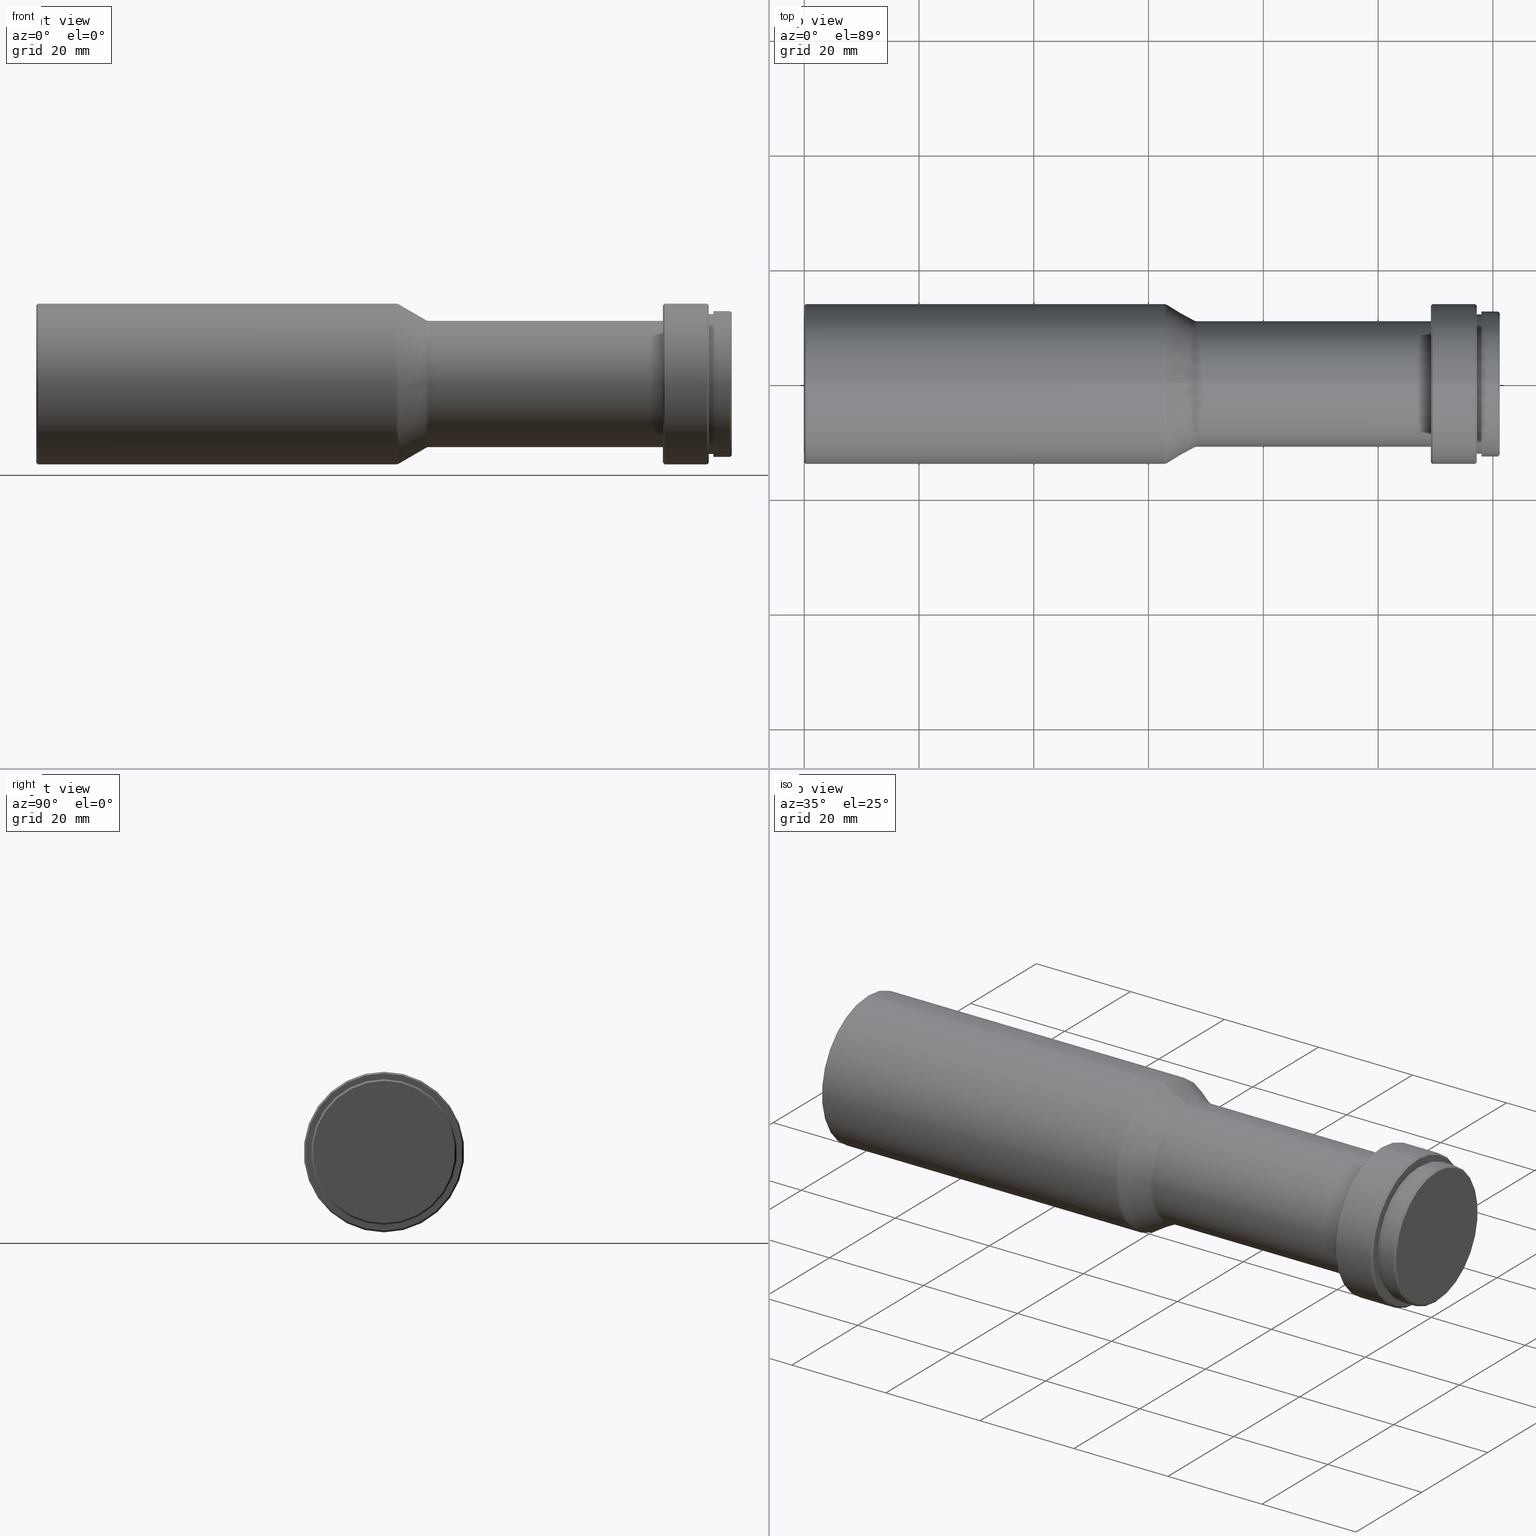
[diagram: canonical four-view strip — front | top / right | iso, engineering-drawing reading convention]
A machine part, canonical four-view strip (front | top / right | iso — engineering-drawing reading convention). The complete STEP part file that produces these views, byte-faithful:
ISO-10303-21;
HEADER;
FILE_DESCRIPTION (( 'STEP AP203' ),
    '1' );
FILE_NAME ('WWH20-63ATV3.STEP',
    '2021-09-09T07:54:44',
    ( '' ),
    ( '' ),
    'SwSTEP 2.0',
    'SolidWorks 2017',
    '' );
FILE_SCHEMA (( 'CONFIG_CONTROL_DESIGN' ));
ENDSEC;

DATA;
#1 = FACE_OUTER_BOUND ( 'NONE', #795, .T. ) ;
#2 = ORIENTED_EDGE ( 'NONE', *, *, #469, .F. ) ;
#3 = AXIS2_PLACEMENT_3D ( 'NONE', #92, #546, #209 ) ;
#4 = ORIENTED_EDGE ( 'NONE', *, *, #479, .T. ) ;
#5 = DIRECTION ( 'NONE',  ( -1.000000000000000000, -0.0000000000000000000, -0.0000000000000000000 ) ) ;
#6 = ORIENTED_EDGE ( 'NONE', *, *, #154, .T. ) ;
#7 = APPROVAL_STATUS ( 'not_yet_approved' ) ;
#8 = CARTESIAN_POINT ( 'NONE',  ( 67.89744790704824600, 0.0000000000000000000, 11.13545307017500200 ) ) ;
#9 = VERTEX_POINT ( 'NONE', #555 ) ;
#10 = ORIENTED_EDGE ( 'NONE', *, *, #612, .T. ) ;
#11 = PERSON_AND_ORGANIZATION_ROLE ( 'creator' ) ;
#12 = DIRECTION ( 'NONE',  ( -0.7071067811865414700, 0.0000000000000000000, 0.7071067811865536800 ) ) ;
#13 = LINE ( 'NONE', #692, #547 ) ;
#14 = DIRECTION ( 'NONE',  ( 0.0000000000000000000, 0.0000000000000000000, 1.000000000000000000 ) ) ;
#15 = COORDINATED_UNIVERSAL_TIME_OFFSET ( 8, 0, .AHEAD. ) ;
#16 = EDGE_CURVE ( 'NONE', #378, #778, #398, .T. ) ;
#17 = PERSON_AND_ORGANIZATION_ROLE ( 'design_owner' ) ;
#18 = DIRECTION ( 'NONE',  ( -1.000000000000000000, -0.0000000000000000000, -0.0000000000000000000 ) ) ;
#19 = AXIS2_PLACEMENT_3D ( 'NONE', #530, #456, #522 ) ;
#20 = DIRECTION ( 'NONE',  ( -1.000000000000000000, -0.0000000000000000000, -0.0000000000000000000 ) ) ;
#21 = DIRECTION ( 'NONE',  ( 0.0000000000000000000, -1.224646799147352200E-016, 1.000000000000000000 ) ) ;
#22 = LINE ( 'NONE', #149, #664 ) ;
#23 = TOROIDAL_SURFACE ( 'NONE', #171, 13.00000000000000200, 0.9999999999999931200 ) ;
#24 = ORIENTED_EDGE ( 'NONE', *, *, #499, .T. ) ;
#25 = DIRECTION ( 'NONE',  ( 0.0000000000000000000, 0.0000000000000000000, 1.000000000000000000 ) ) ;
#26 = AXIS2_PLACEMENT_3D ( 'NONE', #784, #539, #14 ) ;
#27 = EDGE_CURVE ( 'NONE', #138, #763, #448, .T. ) ;
#28 = MANIFOLD_SOLID_BREP ( '��ת1', #595 ) ;
#29 = CARTESIAN_POINT ( 'NONE',  ( 117.2000000000000000, 1.677766114831874000E-015, -13.70000000000000100 ) ) ;
#30 = CIRCLE ( 'NONE', #765, 13.70000000000000100 ) ;
#31 = ORIENTED_EDGE ( 'NONE', *, *, #27, .T. ) ;
#32 = CARTESIAN_POINT ( 'NONE',  ( 63.20255209295175500, 0.0000000000000000000, 13.86454692982498400 ) ) ;
#33 = AXIS2_PLACEMENT_3D ( 'NONE', #812, #177, #110 ) ;
#34 = ORGANIZATION ( 'δָ��', 'δָ��', '' ) ;
#35 = CARTESIAN_POINT ( 'NONE',  ( 109.1999999999999900, 1.347111479062088400E-015, -11.00000000000000000 ) ) ;
#36 = CIRCLE ( 'NONE', #64, 13.86454692982498400 ) ;
#37 = ADVANCED_FACE ( 'NONE', ( #552, #423 ), #494, .F. ) ;
#38 = ADVANCED_FACE ( 'NONE', ( #375 ), #268, .T. ) ;
#39 = CIRCLE ( 'NONE', #723, 12.40000000000000400 ) ;
#40 = DIRECTION ( 'NONE',  ( -1.000000000000000000, -0.0000000000000000000, -0.0000000000000000000 ) ) ;
#41 = FACE_OUTER_BOUND ( 'NONE', #254, .T. ) ;
#42 = ORIENTED_EDGE ( 'NONE', *, *, #16, .F. ) ;
#43 = ORIENTED_EDGE ( 'NONE', *, *, #725, .F. ) ;
#44 = ORIENTED_EDGE ( 'NONE', *, *, #412, .F. ) ;
#45 = DIRECTION ( 'NONE',  ( -1.000000000000000000, -0.0000000000000000000, -0.0000000000000000000 ) ) ;
#46 = EDGE_CURVE ( 'NONE', #626, #142, #577, .T. ) ;
#47 = CIRCLE ( 'NONE', #319, 14.00000000000000000 ) ;
#48 = AXIS2_PLACEMENT_3D ( 'NONE', #235, #811, #294 ) ;
#49 = FACE_OUTER_BOUND ( 'NONE', #289, .T. ) ;
#50 = CARTESIAN_POINT ( 'NONE',  ( 0.0000000000000000000, 1.714505518806294600E-015, -14.00000000000000000 ) ) ;
#51 = CARTESIAN_POINT ( 'NONE',  ( 121.2000000000000000, 0.0000000000000000000, 0.0000000000000000000 ) ) ;
#52 = ADVANCED_FACE ( 'NONE', ( #182 ), #391, .T. ) ;
#53 = CARTESIAN_POINT ( 'NONE',  ( 120.9000000000000100, 0.0000000000000000000, 0.0000000000000000000 ) ) ;
#54 = CARTESIAN_POINT ( 'NONE',  ( 0.0000000000000000000, 1.696135816819084400E-015, 13.70000000000000300 ) ) ;
#55 = CARTESIAN_POINT ( 'NONE',  ( 0.2999999999999999900, 1.714505518806294800E-015, 14.00000000000000200 ) ) ;
#56 = CARTESIAN_POINT ( 'NONE',  ( 62.70000000000000300, 0.0000000000000000000, 0.0000000000000000000 ) ) ;
#57 = VECTOR ( 'NONE', #647, 1000.000000000000000 ) ;
#58 = DIRECTION ( 'NONE',  ( 0.0000000000000000000, 0.0000000000000000000, -1.000000000000000000 ) ) ;
#59 = EDGE_LOOP ( 'NONE', ( #712, #24, #242, #104 ) ) ;
#60 = ORIENTED_EDGE ( 'NONE', *, *, #224, .F. ) ;
#61 = ORIENTED_EDGE ( 'NONE', *, *, #73, .T. ) ;
#62 = CARTESIAN_POINT ( 'NONE',  ( 116.9000000000000100, 0.0000000000000000000, 0.0000000000000000000 ) ) ;
#63 = LINE ( 'NONE', #241, #205 ) ;
#64 = AXIS2_PLACEMENT_3D ( 'NONE', #309, #248, #439 ) ;
#65 = VERTEX_POINT ( 'NONE', #361 ) ;
#66 = ORIENTED_EDGE ( 'NONE', *, *, #479, .F. ) ;
#67 = PERSON_AND_ORGANIZATION ( #383, #34 ) ;
#68 = CYLINDRICAL_SURFACE ( 'NONE', #194, 12.20000000000000300 ) ;
#69 = CARTESIAN_POINT ( 'NONE',  ( 62.70000000000000300, 1.714505518806294600E-015, -14.00000000000000000 ) ) ;
#70 = LINE ( 'NONE', #258, #543 ) ;
#71 = AXIS2_PLACEMENT_3D ( 'NONE', #709, #20, #476 ) ;
#72 = APPROVAL_ROLE ( '' ) ;
#73 = EDGE_CURVE ( 'NONE', #737, #286, #13, .T. ) ;
#74 = APPROVAL_STATUS ( 'not_yet_approved' ) ;
#75 = CONICAL_SURFACE ( 'NONE', #773, 11.13545307017500200, 0.5265481941832603800 ) ;
#76 = APPROVAL ( #7, 'δָ��' ) ;
#77 = CALENDAR_DATE ( 2021, 9, 9 ) ;
#78 = DIRECTION ( 'NONE',  ( -1.000000000000000000, -0.0000000000000000000, -0.0000000000000000000 ) ) ;
#79 = ORIENTED_EDGE ( 'NONE', *, *, #484, .F. ) ;
#80 = ORIENTED_EDGE ( 'NONE', *, *, #335, .T. ) ;
#81 = VERTEX_POINT ( 'NONE', #129 ) ;
#82 = DIRECTION ( 'NONE',  ( 0.0000000000000000000, 0.0000000000000000000, 1.000000000000000000 ) ) ;
#83 = DIRECTION ( 'NONE',  ( -1.000000000000000000, -0.0000000000000000000, -0.0000000000000000000 ) ) ;
#84 = CIRCLE ( 'NONE', #542, 0.9999999999999940000 ) ;
#85 = ORIENTED_EDGE ( 'NONE', *, *, #27, .F. ) ;
#86 = VERTEX_POINT ( 'NONE', #570 ) ;
#87 = DIRECTION ( 'NONE',  ( 0.0000000000000000000, -1.224646799147352000E-016, 1.000000000000000000 ) ) ;
#88 = VECTOR ( 'NONE', #83, 1000.000000000000000 ) ;
#89 = CIRCLE ( 'NONE', #287, 14.00000000000000000 ) ;
#90 = CARTESIAN_POINT ( 'NONE',  ( 0.0000000000000000000, 0.0000000000000000000, 14.00000000000000200 ) ) ;
#91 = CARTESIAN_POINT ( 'NONE',  ( 109.4999999999999900, 0.0000000000000000000, 0.0000000000000000000 ) ) ;
#92 = CARTESIAN_POINT ( 'NONE',  ( 109.1999999999999900, 11.00000000000000000, 0.0000000000000000000 ) ) ;
#93 = CIRCLE ( 'NONE', #360, 14.00000000000000200 ) ;
#94 = DIRECTION ( 'NONE',  ( -1.000000000000000000, -0.0000000000000000000, -0.0000000000000000000 ) ) ;
#95 = DATE_AND_TIME ( #720, #255 ) ;
#96 = ORIENTED_EDGE ( 'NONE', *, *, #799, .T. ) ;
#97 = CARTESIAN_POINT ( 'NONE',  ( 109.1999999999999900, 0.0000000000000000000, 0.0000000000000000000 ) ) ;
#98 = VERTEX_POINT ( 'NONE', #507 ) ;
#99 = DIRECTION ( 'NONE',  ( -0.0000000000000000000, 0.0000000000000000000, 1.000000000000000000 ) ) ;
#100 = ADVANCED_FACE ( 'NONE', ( #517 ), #201, .T. ) ;
#101 = ORIENTED_EDGE ( 'NONE', *, *, #525, .F. ) ;
#102 = FACE_OUTER_BOUND ( 'NONE', #306, .T. ) ;
#103 = ORIENTED_EDGE ( 'NONE', *, *, #297, .F. ) ;
#104 = ORIENTED_EDGE ( 'NONE', *, *, #257, .F. ) ;
#105 = CYLINDRICAL_SURFACE ( 'NONE', #682, 12.70000000000000300 ) ;
#106 = AXIS2_PLACEMENT_3D ( 'NONE', #578, #251, #119 ) ;
#107 = ADVANCED_FACE ( 'NONE', ( #218 ), #571, .T. ) ;
#108 = DIRECTION ( 'NONE',  ( -0.8645469298249874900, 6.154488120381683500E-017, -0.5025520929517537400 ) ) ;
#109 = AXIS2_PLACEMENT_3D ( 'NONE', #327, #332, #87 ) ;
#110 = DIRECTION ( 'NONE',  ( 0.0000000000000000000, 0.0000000000000000000, -1.000000000000000000 ) ) ;
#111 = AXIS2_PLACEMENT_3D ( 'NONE', #184, #433, #231 ) ;
#112 = EDGE_CURVE ( 'NONE', #81, #778, #697, .T. ) ;
#113 = LINE ( 'NONE', #430, #803 ) ;
#114 = ADVANCED_FACE ( 'NONE', ( #673 ), #708, .T. ) ;
#115 = DIRECTION ( 'NONE',  ( 0.0000000000000000000, 0.0000000000000000000, 1.000000000000000000 ) ) ;
#116 = CARTESIAN_POINT ( 'NONE',  ( 68.40000000000002000, 0.0000000000000000000, 0.0000000000000000000 ) ) ;
#117 = AXIS2_PLACEMENT_3D ( 'NONE', #232, #358, #629 ) ;
#118 = PLANE ( 'NONE',  #33 ) ;
#119 = DIRECTION ( 'NONE',  ( 0.0000000000000000000, 0.0000000000000000000, 1.000000000000000000 ) ) ;
#120 = ORIENTED_EDGE ( 'NONE', *, *, #634, .T. ) ;
#121 = DIRECTION ( 'NONE',  ( 0.0000000000000000000, 0.0000000000000000000, 1.000000000000000000 ) ) ;
#122 = ORIENTED_EDGE ( 'NONE', *, *, #634, .F. ) ;
#123 = ORIENTED_EDGE ( 'NONE', *, *, #437, .T. ) ;
#124 = DIRECTION ( 'NONE',  ( 1.000000000000000000, 0.0000000000000000000, 0.0000000000000000000 ) ) ;
#125 = ORIENTED_EDGE ( 'NONE', *, *, #166, .F. ) ;
#126 = CARTESIAN_POINT ( 'NONE',  ( 68.40000000000002000, 0.0000000000000000000, 0.0000000000000000000 ) ) ;
#127 = CIRCLE ( 'NONE', #567, 11.00000000000000000 ) ;
#128 = ORIENTED_EDGE ( 'NONE', *, *, #612, .F. ) ;
#129 = CARTESIAN_POINT ( 'NONE',  ( 109.1999999999999900, 0.0000000000000000000, -13.70000000000000100 ) ) ;
#130 = COORDINATED_UNIVERSAL_TIME_OFFSET ( 8, 0, .AHEAD. ) ;
#131 = DIRECTION ( 'NONE',  ( 0.0000000000000000000, 0.0000000000000000000, 1.000000000000000000 ) ) ;
#132 = CARTESIAN_POINT ( 'NONE',  ( 109.1999999999999900, 1.696135816819084200E-015, 13.70000000000000100 ) ) ;
#133 = AXIS2_PLACEMENT_3D ( 'NONE', #53, #310, #754 ) ;
#134 = PERSON_AND_ORGANIZATION_ROLE ( 'classification_officer' ) ;
#135 = DIRECTION ( 'NONE',  ( 0.0000000000000000000, 0.0000000000000000000, 1.000000000000000000 ) ) ;
#136 = DIRECTION ( 'NONE',  ( 1.000000000000000000, 0.0000000000000000000, 0.0000000000000000000 ) ) ;
#137 = ORIENTED_EDGE ( 'NONE', *, *, #381, .T. ) ;
#138 = VERTEX_POINT ( 'NONE', #752 ) ;
#139 = DIRECTION ( 'NONE',  ( -1.000000000000000000, -0.0000000000000000000, -0.0000000000000000000 ) ) ;
#140 = ORIENTED_EDGE ( 'NONE', *, *, #566, .F. ) ;
#141 = DIRECTION ( 'NONE',  ( -1.000000000000000000, -0.0000000000000000000, -0.0000000000000000000 ) ) ;
#142 = VERTEX_POINT ( 'NONE', #181 ) ;
#143 = ORIENTED_EDGE ( 'NONE', *, *, #207, .F. ) ;
#144 = DIRECTION ( 'NONE',  ( 1.000000000000000000, 0.0000000000000000000, 0.0000000000000000000 ) ) ;
#145 = CARTESIAN_POINT ( 'NONE',  ( 62.70000000000000300, 0.0000000000000000000, 0.0000000000000000000 ) ) ;
#146 = AXIS2_PLACEMENT_3D ( 'NONE', #771, #139, #317 ) ;
#147 = CARTESIAN_POINT ( 'NONE',  ( 120.9000000000000100, 0.0000000000000000000, 0.0000000000000000000 ) ) ;
#148 = DIRECTION ( 'NONE',  ( -0.7071067811865414700, 0.0000000000000000000, 0.7071067811865536800 ) ) ;
#149 = CARTESIAN_POINT ( 'NONE',  ( 0.0000000000000000000, 0.0000000000000000000, 12.70000000000000300 ) ) ;
#150 = FACE_OUTER_BOUND ( 'NONE', #59, .T. ) ;
#151 = EDGE_LOOP ( 'NONE', ( #264, #637, #531, #428 ) ) ;
#152 = AXIS2_PLACEMENT_3D ( 'NONE', #145, #18, #478 ) ;
#153 = AXIS2_PLACEMENT_3D ( 'NONE', #474, #82, #144 ) ;
#154 = EDGE_CURVE ( 'NONE', #489, #9, #36, .T. ) ;
#155 = CARTESIAN_POINT ( 'NONE',  ( 117.2000000000000000, 0.0000000000000000000, 0.0000000000000000000 ) ) ;
#156 = ORIENTED_EDGE ( 'NONE', *, *, #197, .T. ) ;
#157 = CARTESIAN_POINT ( 'NONE',  ( 0.0000000000000000000, 0.0000000000000000000, 0.0000000000000000000 ) ) ;
#158 = VERTEX_POINT ( 'NONE', #746 ) ;
#159 = AXIS2_PLACEMENT_3D ( 'NONE', #116, #40, #558 ) ;
#160 = ORIENTED_EDGE ( 'NONE', *, *, #166, .T. ) ;
#161 = ORIENTED_EDGE ( 'NONE', *, *, #461, .F. ) ;
#162 = ADVANCED_FACE ( 'NONE', ( #729 ), #622, .F. ) ;
#163 = ADVANCED_FACE ( 'NONE', ( #371 ), #408, .T. ) ;
#164 = CARTESIAN_POINT ( 'NONE',  ( 117.2000000000000000, 13.70000000000000100, 0.0000000000000000000 ) ) ;
#165 = CARTESIAN_POINT ( 'NONE',  ( 116.9000000000000100, 0.0000000000000000000, 14.00000000000000000 ) ) ;
#166 = EDGE_CURVE ( 'NONE', #81, #222, #230, .T. ) ;
#167 = ADVANCED_FACE ( 'NONE', ( #564 ), #724, .T. ) ;
#168 = COORDINATED_UNIVERSAL_TIME_OFFSET ( 8, 0, .AHEAD. ) ;
#169 = LINE ( 'NONE', #699, #523 ) ;
#170 = EDGE_LOOP ( 'NONE', ( #403, #670, #575, #492 ) ) ;
#171 = AXIS2_PLACEMENT_3D ( 'NONE', #56, #364, #434 ) ;
#172 = CARTESIAN_POINT ( 'NONE',  ( 62.70000000000000300, 0.0000000000000000000, 0.0000000000000000000 ) ) ;
#173 = DIRECTION ( 'NONE',  ( -0.7071067811865414700, 8.659560562355008000E-017, -0.7071067811865536800 ) ) ;
#174 = ORIENTED_EDGE ( 'NONE', *, *, #280, .F. ) ;
#175 = CARTESIAN_POINT ( 'NONE',  ( 0.2999999999999999900, 0.0000000000000000000, 0.0000000000000000000 ) ) ;
#176 = ORIENTED_EDGE ( 'NONE', *, *, #759, .F. ) ;
#177 = DIRECTION ( 'NONE',  ( 1.000000000000000000, 0.0000000000000000000, 0.0000000000000000000 ) ) ;
#178 = CARTESIAN_POINT ( 'NONE',  ( 68.40000000000002000, 0.0000000000000000000, 12.00000000000000000 ) ) ;
#179 = ORIENTED_EDGE ( 'NONE', *, *, #46, .T. ) ;
#180 = EDGE_LOOP ( 'NONE', ( #343, #346, #429, #143 ) ) ;
#181 = CARTESIAN_POINT ( 'NONE',  ( 0.2999999999999999900, 1.714505518806294800E-015, 14.00000000000000200 ) ) ;
#182 = FACE_OUTER_BOUND ( 'NONE', #266, .T. ) ;
#183 = PRODUCT_DEFINITION_SHAPE ( 'NONE', 'NONE',  #342 ) ;
#184 = CARTESIAN_POINT ( 'NONE',  ( 117.2000000000000000, 0.0000000000000000000, 0.0000000000000000000 ) ) ;
#185 = APPROVAL_DATE_TIME ( #496, #363 ) ;
#186 = CARTESIAN_POINT ( 'NONE',  ( 0.0000000000000000000, 0.0000000000000000000, 0.0000000000000000000 ) ) ;
#187 = DIRECTION ( 'NONE',  ( 0.0000000000000000000, 0.0000000000000000000, -1.000000000000000000 ) ) ;
#188 = EDGE_CURVE ( 'NONE', #668, #527, #384, .T. ) ;
#189 = VECTOR ( 'NONE', #12, 1000.000000000000000 ) ;
#190 = AXIS2_PLACEMENT_3D ( 'NONE', #590, #200, #261 ) ;
#191 = CIRCLE ( 'NONE', #744, 12.40000000000000400 ) ;
#192 = ORIENTED_EDGE ( 'NONE', *, *, #509, .F. ) ;
#193 = CARTESIAN_POINT ( 'NONE',  ( 0.2999999999999999900, 0.0000000000000000000, 0.0000000000000000000 ) ) ;
#194 = AXIS2_PLACEMENT_3D ( 'NONE', #380, #818, #135 ) ;
#195 = CYLINDRICAL_SURFACE ( 'NONE', #19, 10.99999999999999500 ) ;
#196 = AXIS2_PLACEMENT_3D ( 'NONE', #217, #722, #727 ) ;
#197 = EDGE_CURVE ( 'NONE', #640, #814, #686, .T. ) ;
#198 = DIRECTION ( 'NONE',  ( -1.000000000000000000, -0.0000000000000000000, -0.0000000000000000000 ) ) ;
#199 = CC_DESIGN_PERSON_AND_ORGANIZATION_ASSIGNMENT ( #731, #262, ( #234 ) ) ;
#200 = DIRECTION ( 'NONE',  ( -1.000000000000000000, -0.0000000000000000000, -0.0000000000000000000 ) ) ;
#201 = CYLINDRICAL_SURFACE ( 'NONE', #106, 12.70000000000000300 ) ;
#202 = DIRECTION ( 'NONE',  ( -1.000000000000000000, -0.0000000000000000000, -0.0000000000000000000 ) ) ;
#203 = DIRECTION ( 'NONE',  ( 0.0000000000000000000, 0.0000000000000000000, 1.000000000000000000 ) ) ;
#204 = APPROVAL_PERSON_ORGANIZATION ( #216, #363, #533 ) ;
#205 = VECTOR ( 'NONE', #173, 1000.000000000000000 ) ;
#206 = EDGE_LOOP ( 'NONE', ( #137, #272 ) ) ;
#207 = EDGE_CURVE ( 'NONE', #668, #504, #70, .T. ) ;
#208 = EDGE_LOOP ( 'NONE', ( #128, #125, #656, #303 ) ) ;
#209 = DIRECTION ( 'NONE',  ( 0.0000000000000000000, 0.0000000000000000000, -1.000000000000000000 ) ) ;
#210 = LINE ( 'NONE', #8, #407 ) ;
#211 = FACE_OUTER_BOUND ( 'NONE', #180, .T. ) ;
#212 = CARTESIAN_POINT ( 'NONE',  ( 68.40000000000002000, 0.0000000000000000000, 10.99999999999998900 ) ) ;
#213 = AXIS2_PLACEMENT_3D ( 'NONE', #247, #639, #696 ) ;
#214 = DIRECTION ( 'NONE',  ( 0.0000000000000000000, 0.0000000000000000000, 1.000000000000000000 ) ) ;
#215 = PLANE ( 'NONE',  #3 ) ;
#216 = PERSON_AND_ORGANIZATION ( #383, #34 ) ;
#217 = CARTESIAN_POINT ( 'NONE',  ( 117.2000000000000000, 0.0000000000000000000, 0.0000000000000000000 ) ) ;
#218 = FACE_OUTER_BOUND ( 'NONE', #244, .T. ) ;
#219 = CARTESIAN_POINT ( 'NONE',  ( 67.89744790704824600, 0.0000000000000000000, 0.0000000000000000000 ) ) ;
#220 = ADVANCED_FACE ( 'NONE', ( #211 ), #195, .T. ) ;
#221 = ORIENTED_EDGE ( 'NONE', *, *, #236, .F. ) ;
#222 = VERTEX_POINT ( 'NONE', #132 ) ;
#223 = EDGE_LOOP ( 'NONE', ( #85, #285, #338, #308 ) ) ;
#224 = EDGE_CURVE ( 'NONE', #357, #666, #30, .T. ) ;
#225 = FACE_OUTER_BOUND ( 'NONE', #703, .T. ) ;
#226 = ORIENTED_EDGE ( 'NONE', *, *, #592, .T. ) ;
#227 = EDGE_LOOP ( 'NONE', ( #581, #470, #226, #681 ) ) ;
#228 = LOCAL_TIME ( 15, 54, 44.00000000000000000, #168 ) ;
#229 = FACE_OUTER_BOUND ( 'NONE', #223, .T. ) ;
#230 = CIRCLE ( 'NONE', #604, 13.70000000000000100 ) ;
#231 = DIRECTION ( 'NONE',  ( 0.0000000000000000000, 0.0000000000000000000, 1.000000000000000000 ) ) ;
#232 = CARTESIAN_POINT ( 'NONE',  ( 67.89744790704824600, 0.0000000000000000000, 0.0000000000000000000 ) ) ;
#233 = AXIS2_PLACEMENT_3D ( 'NONE', #534, #78, #267 ) ;
#234 = PRODUCT_DEFINITION_FORMATION_WITH_SPECIFIED_SOURCE ( '�κ�', '', #315, .NOT_KNOWN. ) ;
#235 = CARTESIAN_POINT ( 'NONE',  ( 109.4999999999999900, 0.0000000000000000000, 0.0000000000000000000 ) ) ;
#236 = EDGE_CURVE ( 'NONE', #666, #357, #742, .T. ) ;
#237 = DIRECTION ( 'NONE',  ( -1.000000000000000000, -0.0000000000000000000, -0.0000000000000000000 ) ) ;
#238 = CIRCLE ( 'NONE', #159, 10.99999999999998900 ) ;
#239 = CC_DESIGN_APPROVAL ( #76, ( #234 ) ) ;
#240 = CARTESIAN_POINT ( 'NONE',  ( 109.4999999999999900, 0.0000000000000000000, -14.00000000000000000 ) ) ;
#241 = CARTESIAN_POINT ( 'NONE',  ( 121.2000000000000000, 1.518562030942718400E-015, -12.40000000000000400 ) ) ;
#242 = ORIENTED_EDGE ( 'NONE', *, *, #207, .T. ) ;
#243 = EDGE_CURVE ( 'NONE', #737, #378, #585, .T. ) ;
#244 = EDGE_LOOP ( 'NONE', ( #305, #80, #690, #329 ) ) ;
#245 = DIRECTION ( 'NONE',  ( -1.000000000000000000, -0.0000000000000000000, -0.0000000000000000000 ) ) ;
#246 = VERTEX_POINT ( 'NONE', #69 ) ;
#247 = CARTESIAN_POINT ( 'NONE',  ( 109.1999999999999900, 0.0000000000000000000, 0.0000000000000000000 ) ) ;
#248 = DIRECTION ( 'NONE',  ( -1.000000000000000000, -0.0000000000000000000, -0.0000000000000000000 ) ) ;
#249 = DESIGN_CONTEXT ( 'detailed design', #648, 'design' ) ;
#250 = LINE ( 'NONE', #544, #311 ) ;
#251 = DIRECTION ( 'NONE',  ( -1.000000000000000000, -0.0000000000000000000, -0.0000000000000000000 ) ) ;
#252 = CYLINDRICAL_SURFACE ( 'NONE', #691, 14.00000000000000000 ) ;
#253 = ORIENTED_EDGE ( 'NONE', *, *, #385, .F. ) ;
#254 = EDGE_LOOP ( 'NONE', ( #176, #10, #510, #738 ) ) ;
#255 = LOCAL_TIME ( 15, 54, 44.00000000000000000, #130 ) ;
#256 = CIRCLE ( 'NONE', #26, 14.00000000000000200 ) ;
#257 = EDGE_CURVE ( 'NONE', #813, #504, #359, .T. ) ;
#258 = CARTESIAN_POINT ( 'NONE',  ( 0.0000000000000000000, 0.0000000000000000000, 10.99999999999999500 ) ) ;
#259 = EDGE_CURVE ( 'NONE', #527, #813, #707, .T. ) ;
#260 = AXIS2_PLACEMENT_3D ( 'NONE', #535, #713, #203 ) ;
#261 = DIRECTION ( 'NONE',  ( 0.0000000000000000000, 0.0000000000000000000, 1.000000000000000000 ) ) ;
#262 = PERSON_AND_ORGANIZATION_ROLE ( 'design_supplier' ) ;
#263 = APPROVAL_DATE_TIME ( #373, #76 ) ;
#264 = ORIENTED_EDGE ( 'NONE', *, *, #236, .T. ) ;
#265 = ORIENTED_EDGE ( 'NONE', *, *, #610, .F. ) ;
#266 = EDGE_LOOP ( 'NONE', ( #541, #621, #328, #4 ) ) ;
#267 = DIRECTION ( 'NONE',  ( 0.0000000000000000000, 0.0000000000000000000, 1.000000000000000000 ) ) ;
#268 = TOROIDAL_SURFACE ( 'NONE', #641, 13.00000000000000200, 0.9999999999999931200 ) ;
#269 = CARTESIAN_POINT ( 'NONE',  ( 68.40000000000002000, 1.355405587503313300E-015, -10.99999999999998900 ) ) ;
#270 = DIRECTION ( 'NONE',  ( 0.0000000000000000000, 0.0000000000000000000, 1.000000000000000000 ) ) ;
#271 = CIRCLE ( 'NONE', #711, 13.70000000000000300 ) ;
#272 = ORIENTED_EDGE ( 'NONE', *, *, #484, .T. ) ;
#273 = DIRECTION ( 'NONE',  ( -1.000000000000000000, -0.0000000000000000000, -0.0000000000000000000 ) ) ;
#274 = CIRCLE ( 'NONE', #152, 14.00000000000000000 ) ;
#275 = DIRECTION ( 'NONE',  ( 0.0000000000000000000, 0.0000000000000000000, 1.000000000000000000 ) ) ;
#276 = DIRECTION ( 'NONE',  ( -1.000000000000000000, -0.0000000000000000000, -0.0000000000000000000 ) ) ;
#277 = AXIS2_PLACEMENT_3D ( 'NONE', #193, #136, #589 ) ;
#278 = CIRCLE ( 'NONE', #213, 13.70000000000000100 ) ;
#279 =( GEOMETRIC_REPRESENTATION_CONTEXT ( 3 ) GLOBAL_UNCERTAINTY_ASSIGNED_CONTEXT ( ( #330 ) ) GLOBAL_UNIT_ASSIGNED_CONTEXT ( ( #779, #782, #395 ) ) REPRESENTATION_CONTEXT ( 'NONE', 'WORKASPACE' ) );
#280 = EDGE_CURVE ( 'NONE', #378, #737, #89, .T. ) ;
#281 = DIRECTION ( 'NONE',  ( 0.7071067811865476800, 0.0000000000000000000, -0.7071067811865474600 ) ) ;
#282 = DIRECTION ( 'NONE',  ( -1.000000000000000000, -0.0000000000000000000, -0.0000000000000000000 ) ) ;
#283 = DIRECTION ( 'NONE',  ( -1.000000000000000000, -0.0000000000000000000, -0.0000000000000000000 ) ) ;
#284 = SECURITY_CLASSIFICATION ( '', '', #588 ) ;
#285 = ORIENTED_EDGE ( 'NONE', *, *, #743, .T. ) ;
#286 = VERTEX_POINT ( 'NONE', #320 ) ;
#287 = AXIS2_PLACEMENT_3D ( 'NONE', #62, #5, #324 ) ;
#288 = CARTESIAN_POINT ( 'NONE',  ( 62.70000000000000300, 1.592040838891559300E-015, -13.00000000000000200 ) ) ;
#289 = EDGE_LOOP ( 'NONE', ( #445, #513, #123, #607 ) ) ;
#290 = CIRCLE ( 'NONE', #615, 12.70000000000000300 ) ;
#291 = ADVANCED_FACE ( 'NONE', ( #49 ), #68, .T. ) ;
#292 = EDGE_LOOP ( 'NONE', ( #657, #783 ) ) ;
#293 = LOCAL_TIME ( 15, 54, 44.00000000000000000, #550 ) ;
#294 = DIRECTION ( 'NONE',  ( 0.0000000000000000000, 0.0000000000000000000, -1.000000000000000000 ) ) ;
#295 = ADVANCED_FACE ( 'NONE', ( #608 ), #382, .T. ) ;
#296 = CARTESIAN_POINT ( 'NONE',  ( 109.4999999999999900, 0.0000000000000000000, -14.00000000000000000 ) ) ;
#297 = EDGE_CURVE ( 'NONE', #9, #489, #583, .T. ) ;
#298 = DIRECTION ( 'NONE',  ( 0.0000000000000000000, 0.0000000000000000000, 1.000000000000000000 ) ) ;
#299 = EDGE_CURVE ( 'NONE', #814, #489, #210, .T. ) ;
#300 = AXIS2_PLACEMENT_3D ( 'NONE', #155, #339, #25 ) ;
#301 = DIRECTION ( 'NONE',  ( 0.7071067811865414700, 0.0000000000000000000, -0.7071067811865536800 ) ) ;
#302 = CARTESIAN_POINT ( 'NONE',  ( 118.0000000000000000, 1.555301434917138800E-015, -12.70000000000000300 ) ) ;
#303 = ORIENTED_EDGE ( 'NONE', *, *, #525, .T. ) ;
#304 = CARTESIAN_POINT ( 'NONE',  ( 121.2000000000000000, 12.40000000000000400, 0.0000000000000000000 ) ) ;
#305 = ORIENTED_EDGE ( 'NONE', *, *, #509, .T. ) ;
#306 = EDGE_LOOP ( 'NONE', ( #160, #418 ) ) ;
#307 = EDGE_LOOP ( 'NONE', ( #601, #96 ) ) ;
#308 = ORIENTED_EDGE ( 'NONE', *, *, #545, .F. ) ;
#309 = CARTESIAN_POINT ( 'NONE',  ( 63.20255209295175500, 0.0000000000000000000, 0.0000000000000000000 ) ) ;
#310 = DIRECTION ( 'NONE',  ( -1.000000000000000000, -0.0000000000000000000, -0.0000000000000000000 ) ) ;
#311 = VECTOR ( 'NONE', #281, 1000.000000000000000 ) ;
#312 = DIRECTION ( 'NONE',  ( 0.0000000000000000000, 0.0000000000000000000, 1.000000000000000000 ) ) ;
#313 = DIRECTION ( 'NONE',  ( 0.0000000000000000000, 0.0000000000000000000, 1.000000000000000000 ) ) ;
#314 = LINE ( 'NONE', #90, #819 ) ;
#315 = PRODUCT ( 'WWH20-63ATV3', 'WWH20-63ATV3', '', ( #397 ) ) ;
#316 = DATE_TIME_ROLE ( 'classification_date' ) ;
#317 = DIRECTION ( 'NONE',  ( 0.0000000000000000000, 0.0000000000000000000, 1.000000000000000000 ) ) ;
#318 = ORIENTED_EDGE ( 'NONE', *, *, #454, .F. ) ;
#319 = AXIS2_PLACEMENT_3D ( 'NONE', #91, #790, #214 ) ;
#320 = CARTESIAN_POINT ( 'NONE',  ( 109.4999999999999900, 1.714505518806294600E-015, 14.00000000000000000 ) ) ;
#321 = AXIS2_PLACEMENT_3D ( 'NONE', #446, #757, #449 ) ;
#322 = EDGE_CURVE ( 'NONE', #142, #775, #256, .T. ) ;
#323 = EDGE_LOOP ( 'NONE', ( #42, #618, #61, #101 ) ) ;
#324 = DIRECTION ( 'NONE',  ( 0.0000000000000000000, 0.0000000000000000000, 1.000000000000000000 ) ) ;
#325 = ORIENTED_EDGE ( 'NONE', *, *, #335, .F. ) ;
#326 = CC_DESIGN_PERSON_AND_ORGANIZATION_ASSIGNMENT ( #67, #134, ( #284 ) ) ;
#327 = CARTESIAN_POINT ( 'NONE',  ( 68.40000000000002000, 1.469576158976823900E-015, -12.00000000000000000 ) ) ;
#328 = ORIENTED_EDGE ( 'NONE', *, *, #469, .T. ) ;
#329 = ORIENTED_EDGE ( 'NONE', *, *, #372, .F. ) ;
#330 = UNCERTAINTY_MEASURE_WITH_UNIT (LENGTH_MEASURE( 1.000000000000000100E-005 ), #779, 'distance_accuracy_value', 'NONE');
#331 = PERSON_AND_ORGANIZATION ( #383, #34 ) ;
#332 = DIRECTION ( 'NONE',  ( -0.0000000000000000000, 1.000000000000000000, 1.224646799147353200E-016 ) ) ;
#333 = DIRECTION ( 'NONE',  ( 0.0000000000000000000, 0.0000000000000000000, 1.000000000000000000 ) ) ;
#334 = CYLINDRICAL_SURFACE ( 'NONE', #768, 14.00000000000000200 ) ;
#335 = EDGE_CURVE ( 'NONE', #246, #775, #432, .T. ) ;
#336 = CARTESIAN_POINT ( 'NONE',  ( 0.0000000000000000000, 0.0000000000000000000, 12.20000000000000300 ) ) ;
#337 = CIRCLE ( 'NONE', #133, 12.70000000000000300 ) ;
#338 = ORIENTED_EDGE ( 'NONE', *, *, #435, .T. ) ;
#339 = DIRECTION ( 'NONE',  ( -1.000000000000000000, -0.0000000000000000000, -0.0000000000000000000 ) ) ;
#340 = EDGE_CURVE ( 'NONE', #246, #687, #274, .T. ) ;
#341 = DIRECTION ( 'NONE',  ( -1.000000000000000000, -0.0000000000000000000, -0.0000000000000000000 ) ) ;
#342 = PRODUCT_DEFINITION ( 'δ֪', '', #234, #249 ) ;
#343 = ORIENTED_EDGE ( 'NONE', *, *, #188, .T. ) ;
#344 = CARTESIAN_POINT ( 'NONE',  ( 0.2999999999999999900, 0.0000000000000000000, 0.0000000000000000000 ) ) ;
#345 = DIRECTION ( 'NONE',  ( 0.0000000000000000000, 0.0000000000000000000, 1.000000000000000000 ) ) ;
#346 = ORIENTED_EDGE ( 'NONE', *, *, #259, .T. ) ;
#347 = EDGE_LOOP ( 'NONE', ( #638, #156, #524, #103 ) ) ;
#348 = EDGE_LOOP ( 'NONE', ( #161, #705, #796, #174 ) ) ;
#349 = ADVANCED_FACE ( 'NONE', ( #229 ), #105, .T. ) ;
#350 = CYLINDRICAL_SURFACE ( 'NONE', #458, 12.20000000000000300 ) ;
#351 = LOCAL_TIME ( 15, 54, 44.00000000000000000, #442 ) ;
#352 = ADVANCED_FACE ( 'NONE', ( #766 ), #350, .T. ) ;
#353 = PLANE ( 'NONE',  #405 ) ;
#354 = VECTOR ( 'NONE', #661, 1000.000000000000000 ) ;
#355 = FACE_OUTER_BOUND ( 'NONE', #671, .T. ) ;
#356 = ORIENTED_EDGE ( 'NONE', *, *, #412, .T. ) ;
#357 = VERTEX_POINT ( 'NONE', #537 ) ;
#358 = DIRECTION ( 'NONE',  ( -1.000000000000000000, -0.0000000000000000000, -0.0000000000000000000 ) ) ;
#359 = CIRCLE ( 'NONE', #190, 10.99999999999998900 ) ;
#360 = AXIS2_PLACEMENT_3D ( 'NONE', #344, #788, #413 ) ;
#361 = CARTESIAN_POINT ( 'NONE',  ( 121.2000000000000000, 1.536931732929928600E-015, -12.40000000000000400 ) ) ;
#362 = ADVANCED_FACE ( 'NONE', ( #740 ), #334, .T. ) ;
#363 = APPROVAL ( #74, 'δָ��' ) ;
#364 = DIRECTION ( 'NONE',  ( -1.000000000000000000, -0.0000000000000000000, -0.0000000000000000000 ) ) ;
#365 = EDGE_CURVE ( 'NONE', #65, #596, #39, .T. ) ;
#366 = DIRECTION ( 'NONE',  ( -1.000000000000000000, -0.0000000000000000000, -0.0000000000000000000 ) ) ;
#367 = DIRECTION ( 'NONE',  ( 1.000000000000000000, 0.0000000000000000000, 0.0000000000000000000 ) ) ;
#368 = CARTESIAN_POINT ( 'NONE',  ( 117.2000000000000000, 1.494069094959771300E-015, -12.20000000000000300 ) ) ;
#369 = AXIS2_PLACEMENT_3D ( 'NONE', #748, #366, #807 ) ;
#370 = DIRECTION ( 'NONE',  ( 0.0000000000000000000, 0.0000000000000000000, 1.000000000000000000 ) ) ;
#371 = FACE_OUTER_BOUND ( 'NONE', #151, .T. ) ;
#372 = EDGE_CURVE ( 'NONE', #687, #142, #314, .T. ) ;
#373 = DATE_AND_TIME ( #739, #351 ) ;
#374 = DIRECTION ( 'NONE',  ( -1.000000000000000000, -0.0000000000000000000, -0.0000000000000000000 ) ) ;
#375 = FACE_OUTER_BOUND ( 'NONE', #394, .T. ) ;
#376 = CIRCLE ( 'NONE', #802, 12.70000000000000300 ) ;
#377 = FACE_OUTER_BOUND ( 'NONE', #206, .T. ) ;
#378 = VERTEX_POINT ( 'NONE', #602 ) ;
#379 = ORIENTED_EDGE ( 'NONE', *, *, #197, .F. ) ;
#380 = CARTESIAN_POINT ( 'NONE',  ( 0.0000000000000000000, 0.0000000000000000000, 0.0000000000000000000 ) ) ;
#381 = EDGE_CURVE ( 'NONE', #98, #626, #521, .T. ) ;
#382 = CONICAL_SURFACE ( 'NONE', #277, 14.00000000000000200, 0.7853981633974481700 ) ;
#383 = PERSON ( 'δָ��', 'δָ��', 'δָ��', ('δָ��'), ('δָ��'), ('δָ��') ) ;
#384 = CIRCLE ( 'NONE', #646, 11.00000000000000000 ) ;
#385 = EDGE_CURVE ( 'NONE', #635, #138, #376, .T. ) ;
#386 = CC_DESIGN_PERSON_AND_ORGANIZATION_ASSIGNMENT ( #710, #11, ( #342 ) ) ;
#387 = CARTESIAN_POINT ( 'NONE',  ( 0.0000000000000000000, 1.714505518806294800E-015, -14.00000000000000200 ) ) ;
#388 = APPROVAL_ROLE ( '' ) ;
#389 = DIRECTION ( 'NONE',  ( 0.0000000000000000000, 0.0000000000000000000, 1.000000000000000000 ) ) ;
#390 = PERSON_AND_ORGANIZATION ( #383, #34 ) ;
#391 = CONICAL_SURFACE ( 'NONE', #518, 14.00000000000000200, 0.7853981633974481700 ) ;
#392 = CARTESIAN_POINT ( 'NONE',  ( 117.2000000000000000, 0.0000000000000000000, 13.70000000000000100 ) ) ;
#393 = LOCAL_TIME ( 15, 54, 44.00000000000000000, #15 ) ;
#394 = EDGE_LOOP ( 'NONE', ( #6, #756, #192, #444 ) ) ;
#395 =( NAMED_UNIT ( * ) SI_UNIT ( $, .STERADIAN. ) SOLID_ANGLE_UNIT ( ) );
#396 = ORIENTED_EDGE ( 'NONE', *, *, #651, .T. ) ;
#397 = MECHANICAL_CONTEXT ( 'NONE', #600, 'mechanical' ) ;
#398 = LINE ( 'NONE', #50, #734 ) ;
#399 = DIRECTION ( 'NONE',  ( -1.000000000000000000, -0.0000000000000000000, -0.0000000000000000000 ) ) ;
#400 = CIRCLE ( 'NONE', #438, 1.000000000000011300 ) ;
#401 = CARTESIAN_POINT ( 'NONE',  ( 121.2000000000000000, 0.0000000000000000000, 0.0000000000000000000 ) ) ;
#402 = ORIENTED_EDGE ( 'NONE', *, *, #16, .T. ) ;
#403 = ORIENTED_EDGE ( 'NONE', *, *, #551, .F. ) ;
#404 = CARTESIAN_POINT ( 'NONE',  ( 118.0000000000000000, 0.0000000000000000000, 0.0000000000000000000 ) ) ;
#405 = AXIS2_PLACEMENT_3D ( 'NONE', #304, #741, #498 ) ;
#406 = PERSON_AND_ORGANIZATION ( #383, #34 ) ;
#407 = VECTOR ( 'NONE', #464, 1000.000000000000200 ) ;
#408 = CONICAL_SURFACE ( 'NONE', #424, 13.70000000000000100, 0.7853981633974569400 ) ;
#409 = DIRECTION ( 'NONE',  ( 0.0000000000000000000, 0.0000000000000000000, -1.000000000000000000 ) ) ;
#410 = AXIS2_PLACEMENT_3D ( 'NONE', #593, #774, #389 ) ;
#411 = APPROVAL ( #457, 'δָ��' ) ;
#412 = EDGE_CURVE ( 'NONE', #640, #813, #501, .T. ) ;
#413 = DIRECTION ( 'NONE',  ( 0.0000000000000000000, 0.0000000000000000000, 1.000000000000000000 ) ) ;
#414 = CIRCLE ( 'NONE', #117, 11.13545307017500200 ) ;
#415 = DIRECTION ( 'NONE',  ( 0.0000000000000000000, 0.0000000000000000000, 1.000000000000000000 ) ) ;
#416 = CARTESIAN_POINT ( 'NONE',  ( 118.0000000000000000, 0.0000000000000000000, 0.0000000000000000000 ) ) ;
#417 = CALENDAR_DATE ( 2021, 9, 9 ) ;
#418 = ORIENTED_EDGE ( 'NONE', *, *, #759, .T. ) ;
#419 = ORIENTED_EDGE ( 'NONE', *, *, #340, .T. ) ;
#420 = EDGE_CURVE ( 'NONE', #666, #737, #554, .T. ) ;
#421 = DIRECTION ( 'NONE',  ( -1.000000000000000000, -0.0000000000000000000, -0.0000000000000000000 ) ) ;
#422 = EDGE_LOOP ( 'NONE', ( #325, #419, #762, #66 ) ) ;
#423 = FACE_BOUND ( 'NONE', #307, .T. ) ;
#424 = AXIS2_PLACEMENT_3D ( 'NONE', #576, #237, #370 ) ;
#425 = FACE_OUTER_BOUND ( 'NONE', #793, .T. ) ;
#426 = ADVANCED_FACE ( 'NONE', ( #701 ), #679, .T. ) ;
#427 = ORIENTED_EDGE ( 'NONE', *, *, #73, .F. ) ;
#428 = ORIENTED_EDGE ( 'NONE', *, *, #420, .F. ) ;
#429 = ORIENTED_EDGE ( 'NONE', *, *, #651, .F. ) ;
#430 = CARTESIAN_POINT ( 'NONE',  ( 67.89744790704824600, 1.363699695944538400E-015, -11.13545307017500200 ) ) ;
#431 = CALENDAR_DATE ( 2021, 9, 9 ) ;
#432 = LINE ( 'NONE', #387, #88 ) ;
#433 = DIRECTION ( 'NONE',  ( -1.000000000000000000, -0.0000000000000000000, -0.0000000000000000000 ) ) ;
#434 = DIRECTION ( 'NONE',  ( 0.0000000000000000000, 0.0000000000000000000, 1.000000000000000000 ) ) ;
#435 = EDGE_CURVE ( 'NONE', #635, #158, #22, .T. ) ;
#436 = PLANE ( 'NONE',  #467 ) ;
#437 = EDGE_CURVE ( 'NONE', #617, #86, #538, .T. ) ;
#438 = AXIS2_PLACEMENT_3D ( 'NONE', #178, #569, #58 ) ;
#439 = DIRECTION ( 'NONE',  ( 0.0000000000000000000, 0.0000000000000000000, 1.000000000000000000 ) ) ;
#440 = FACE_OUTER_BOUND ( 'NONE', #170, .T. ) ;
#441 = CARTESIAN_POINT ( 'NONE',  ( 62.70000000000000300, 0.0000000000000000000, 14.00000000000000000 ) ) ;
#442 = COORDINATED_UNIVERSAL_TIME_OFFSET ( 8, 0, .AHEAD. ) ;
#443 = ORIENTED_EDGE ( 'NONE', *, *, #685, .T. ) ;
#444 = ORIENTED_EDGE ( 'NONE', *, *, #599, .F. ) ;
#445 = ORIENTED_EDGE ( 'NONE', *, *, #770, .F. ) ;
#446 = CARTESIAN_POINT ( 'NONE',  ( 68.40000000000002000, 0.0000000000000000000, 0.0000000000000000000 ) ) ;
#447 = CARTESIAN_POINT ( 'NONE',  ( 109.4999999999999900, 0.0000000000000000000, 0.0000000000000000000 ) ) ;
#448 = LINE ( 'NONE', #623, #715 ) ;
#449 = DIRECTION ( 'NONE',  ( 0.0000000000000000000, 0.0000000000000000000, 1.000000000000000000 ) ) ;
#450 = DIRECTION ( 'NONE',  ( 0.0000000000000000000, 0.0000000000000000000, 1.000000000000000000 ) ) ;
#451 = CIRCLE ( 'NONE', #654, 12.20000000000000300 ) ;
#452 = ORIENTED_EDGE ( 'NONE', *, *, #299, .F. ) ;
#453 = CARTESIAN_POINT ( 'NONE',  ( 117.2000000000000000, 0.0000000000000000000, 0.0000000000000000000 ) ) ;
#454 = EDGE_CURVE ( 'NONE', #286, #778, #47, .T. ) ;
#455 = AXIS2_PLACEMENT_3D ( 'NONE', #717, #726, #409 ) ;
#456 = DIRECTION ( 'NONE',  ( -1.000000000000000000, -0.0000000000000000000, -0.0000000000000000000 ) ) ;
#457 = APPROVAL_STATUS ( 'not_yet_approved' ) ;
#458 = AXIS2_PLACEMENT_3D ( 'NONE', #605, #273, #275 ) ;
#459 = DIRECTION ( 'NONE',  ( -1.000000000000000000, -0.0000000000000000000, -0.0000000000000000000 ) ) ;
#460 = CC_DESIGN_APPROVAL ( #411, ( #284 ) ) ;
#461 = EDGE_CURVE ( 'NONE', #357, #378, #721, .T. ) ;
#462 = APPLICATION_PROTOCOL_DEFINITION ( 'international standard', 'config_control_design', 1994, #648 ) ;
#463 = ORIENTED_EDGE ( 'NONE', *, *, #257, .T. ) ;
#464 = DIRECTION ( 'NONE',  ( -0.8645469298249874900, 0.0000000000000000000, 0.5025520929517537400 ) ) ;
#465 = EDGE_LOOP ( 'NONE', ( #43, #140 ) ) ;
#466 = VECTOR ( 'NONE', #815, 1000.000000000000000 ) ;
#467 = AXIS2_PLACEMENT_3D ( 'NONE', #689, #502, #693 ) ;
#468 = EDGE_LOOP ( 'NONE', ( #79, #179, #776, #2 ) ) ;
#469 = EDGE_CURVE ( 'NONE', #98, #775, #250, .T. ) ;
#470 = ORIENTED_EDGE ( 'NONE', *, *, #365, .T. ) ;
#471 = CARTESIAN_POINT ( 'NONE',  ( 67.89744790704824600, 0.0000000000000000000, 11.13545307017500200 ) ) ;
#472 = DIRECTION ( 'NONE',  ( 0.0000000000000000000, 0.0000000000000000000, 1.000000000000000000 ) ) ;
#473 = CONICAL_SURFACE ( 'NONE', #196, 13.70000000000000100, 0.7853981633974569400 ) ;
#474 = CARTESIAN_POINT ( 'NONE',  ( 0.0000000000000000000, 0.0000000000000000000, 0.0000000000000000000 ) ) ;
#475 = AXIS2_PLACEMENT_3D ( 'NONE', #186, #645, #698 ) ;
#476 = DIRECTION ( 'NONE',  ( 0.0000000000000000000, 0.0000000000000000000, 1.000000000000000000 ) ) ;
#477 = APPROVAL_PERSON_ORGANIZATION ( #331, #411, #388 ) ;
#478 = DIRECTION ( 'NONE',  ( 0.0000000000000000000, 0.0000000000000000000, 1.000000000000000000 ) ) ;
#479 = EDGE_CURVE ( 'NONE', #775, #142, #93, .T. ) ;
#480 = DIRECTION ( 'NONE',  ( 0.0000000000000000000, 0.0000000000000000000, 1.000000000000000000 ) ) ;
#481 = CARTESIAN_POINT ( 'NONE',  ( 121.2000000000000000, 0.0000000000000000000, 12.40000000000000400 ) ) ;
#482 = LINE ( 'NONE', #485, #579 ) ;
#483 = DIRECTION ( 'NONE',  ( -0.7071067811865414700, 8.659560562355008000E-017, -0.7071067811865536800 ) ) ;
#484 = EDGE_CURVE ( 'NONE', #626, #98, #271, .T. ) ;
#485 = CARTESIAN_POINT ( 'NONE',  ( 121.2000000000000000, 0.0000000000000000000, 12.40000000000000400 ) ) ;
#486 = CC_DESIGN_DATE_AND_TIME_ASSIGNMENT ( #582, #586, ( #342 ) ) ;
#487 = ORIENTED_EDGE ( 'NONE', *, *, #243, .T. ) ;
#488 = DIRECTION ( 'NONE',  ( 0.0000000000000000000, 0.0000000000000000000, 1.000000000000000000 ) ) ;
#489 = VERTEX_POINT ( 'NONE', #32 ) ;
#490 = DIRECTION ( 'NONE',  ( -1.000000000000000000, -0.0000000000000000000, -0.0000000000000000000 ) ) ;
#491 = ORIENTED_EDGE ( 'NONE', *, *, #685, .F. ) ;
#492 = ORIENTED_EDGE ( 'NONE', *, *, #340, .F. ) ;
#493 = ADVANCED_FACE ( 'NONE', ( #643, #102 ), #215, .F. ) ;
#494 = PLANE ( 'NONE',  #675 ) ;
#495 = CIRCLE ( 'NONE', #787, 14.00000000000000000 ) ;
#496 = DATE_AND_TIME ( #77, #228 ) ;
#497 = ADVANCED_FACE ( 'NONE', ( #150 ), #556, .T. ) ;
#498 = DIRECTION ( 'NONE',  ( -0.0000000000000000000, 0.0000000000000000000, 1.000000000000000000 ) ) ;
#499 = EDGE_CURVE ( 'NONE', #527, #668, #127, .T. ) ;
#500 = ADVANCED_FACE ( 'NONE', ( #718 ), #252, .T. ) ;
#501 = CIRCLE ( 'NONE', #109, 1.000000000000011300 ) ;
#502 = DIRECTION ( 'NONE',  ( 1.000000000000000000, 0.0000000000000000000, 0.0000000000000000000 ) ) ;
#503 = CIRCLE ( 'NONE', #111, 12.20000000000000300 ) ;
#504 = VERTEX_POINT ( 'NONE', #212 ) ;
#505 = DIRECTION ( 'NONE',  ( -1.000000000000000000, -0.0000000000000000000, -0.0000000000000000000 ) ) ;
#506 = CARTESIAN_POINT ( 'NONE',  ( 118.0000000000000000, 1.494069094959771300E-015, -12.20000000000000300 ) ) ;
#507 = CARTESIAN_POINT ( 'NONE',  ( 0.0000000000000000000, 0.0000000000000000000, -13.70000000000000300 ) ) ;
#508 = ORIENTED_EDGE ( 'NONE', *, *, #385, .T. ) ;
#509 = EDGE_CURVE ( 'NONE', #687, #246, #495, .T. ) ;
#510 = ORIENTED_EDGE ( 'NONE', *, *, #454, .T. ) ;
#511 = DIRECTION ( 'NONE',  ( -1.000000000000000000, -0.0000000000000000000, -0.0000000000000000000 ) ) ;
#512 = DIRECTION ( 'NONE',  ( -1.000000000000000000, -0.0000000000000000000, -0.0000000000000000000 ) ) ;
#513 = ORIENTED_EDGE ( 'NONE', *, *, #566, .T. ) ;
#514 = ORIENTED_EDGE ( 'NONE', *, *, #653, .T. ) ;
#515 = CC_DESIGN_DATE_AND_TIME_ASSIGNMENT ( #95, #316, ( #284 ) ) ;
#516 = DIRECTION ( 'NONE',  ( 0.0000000000000000000, 0.0000000000000000000, 1.000000000000000000 ) ) ;
#517 = FACE_OUTER_BOUND ( 'NONE', #574, .T. ) ;
#518 = AXIS2_PLACEMENT_3D ( 'NONE', #175, #367, #695 ) ;
#519 = AXIS2_PLACEMENT_3D ( 'NONE', #447, #124, #187 ) ;
#520 = CARTESIAN_POINT ( 'NONE',  ( 67.89744790704824600, 0.0000000000000000000, 0.0000000000000000000 ) ) ;
#521 = CIRCLE ( 'NONE', #71, 13.70000000000000300 ) ;
#522 = DIRECTION ( 'NONE',  ( 0.0000000000000000000, 0.0000000000000000000, 1.000000000000000000 ) ) ;
#523 = VECTOR ( 'NONE', #374, 1000.000000000000000 ) ;
#524 = ORIENTED_EDGE ( 'NONE', *, *, #299, .T. ) ;
#525 = EDGE_CURVE ( 'NONE', #778, #286, #781, .T. ) ;
#526 = DIRECTION ( 'NONE',  ( 0.0000000000000000000, 0.0000000000000000000, 1.000000000000000000 ) ) ;
#527 = VERTEX_POINT ( 'NONE', #35 ) ;
#528 = DIRECTION ( 'NONE',  ( -1.000000000000000000, -0.0000000000000000000, -0.0000000000000000000 ) ) ;
#529 = ORIENTED_EDGE ( 'NONE', *, *, #563, .F. ) ;
#530 = CARTESIAN_POINT ( 'NONE',  ( 0.0000000000000000000, 0.0000000000000000000, 0.0000000000000000000 ) ) ;
#531 = ORIENTED_EDGE ( 'NONE', *, *, #243, .F. ) ;
#532 = VECTOR ( 'NONE', #301, 1000.000000000000000 ) ;
#533 = APPROVAL_ROLE ( '' ) ;
#534 = CARTESIAN_POINT ( 'NONE',  ( 121.2000000000000000, 0.0000000000000000000, 0.0000000000000000000 ) ) ;
#535 = CARTESIAN_POINT ( 'NONE',  ( 118.0000000000000000, 0.0000000000000000000, 0.0000000000000000000 ) ) ;
#536 = CARTESIAN_POINT ( 'NONE',  ( 0.0000000000000000000, 0.0000000000000000000, 0.0000000000000000000 ) ) ;
#537 = CARTESIAN_POINT ( 'NONE',  ( 117.2000000000000000, 1.696135816819084200E-015, -13.70000000000000100 ) ) ;
#538 = LINE ( 'NONE', #336, #354 ) ;
#539 = DIRECTION ( 'NONE',  ( -1.000000000000000000, -0.0000000000000000000, -0.0000000000000000000 ) ) ;
#540 = CIRCLE ( 'NONE', #584, 12.20000000000000300 ) ;
#541 = ORIENTED_EDGE ( 'NONE', *, *, #46, .F. ) ;
#542 = AXIS2_PLACEMENT_3D ( 'NONE', #288, #785, #21 ) ;
#543 = VECTOR ( 'NONE', #459, 1000.000000000000000 ) ;
#544 = CARTESIAN_POINT ( 'NONE',  ( 0.2999999999999999900, 0.0000000000000000000, -14.00000000000000200 ) ) ;
#545 = EDGE_CURVE ( 'NONE', #763, #158, #290, .T. ) ;
#546 = DIRECTION ( 'NONE',  ( 1.000000000000000000, 0.0000000000000000000, 0.0000000000000000000 ) ) ;
#547 = VECTOR ( 'NONE', #642, 1000.000000000000000 ) ;
#548 = DIRECTION ( 'NONE',  ( -1.000000000000000000, -0.0000000000000000000, -0.0000000000000000000 ) ) ;
#549 = CC_DESIGN_SECURITY_CLASSIFICATION ( #284, ( #234 ) ) ;
#550 = COORDINATED_UNIVERSAL_TIME_OFFSET ( 8, 0, .AHEAD. ) ;
#551 = EDGE_CURVE ( 'NONE', #9, #246, #84, .T. ) ;
#552 = FACE_OUTER_BOUND ( 'NONE', #559, .T. ) ;
#553 = AXIS2_PLACEMENT_3D ( 'NONE', #126, #700, #312 ) ;
#554 = LINE ( 'NONE', #392, #189 ) ;
#555 = CARTESIAN_POINT ( 'NONE',  ( 63.20255209295175500, 1.706211410365068600E-015, -13.86454692982498400 ) ) ;
#556 = CYLINDRICAL_SURFACE ( 'NONE', #665, 10.99999999999999500 ) ;
#557 = ADVANCED_FACE ( 'NONE', ( #749 ), #473, .T. ) ;
#558 = DIRECTION ( 'NONE',  ( 0.0000000000000000000, 0.0000000000000000000, 1.000000000000000000 ) ) ;
#559 = EDGE_LOOP ( 'NONE', ( #221, #60 ) ) ;
#560 = VECTOR ( 'NONE', #483, 1000.000000000000000 ) ;
#561 = CARTESIAN_POINT ( 'NONE',  ( 118.0000000000000000, 0.0000000000000000000, 12.20000000000000300 ) ) ;
#562 = CARTESIAN_POINT ( 'NONE',  ( 109.1999999999999900, 0.0000000000000000000, 11.00000000000000000 ) ) ;
#563 = EDGE_CURVE ( 'NONE', #86, #660, #625, .T. ) ;
#564 = FACE_OUTER_BOUND ( 'NONE', #208, .T. ) ;
#565 = DIRECTION ( 'NONE',  ( -1.000000000000000000, 0.0000000000000000000, -0.0000000000000000000 ) ) ;
#566 = EDGE_CURVE ( 'NONE', #672, #617, #451, .T. ) ;
#567 = AXIS2_PLACEMENT_3D ( 'NONE', #97, #94, #415 ) ;
#568 = CIRCLE ( 'NONE', #260, 12.70000000000000300 ) ;
#569 = DIRECTION ( 'NONE',  ( 0.0000000000000000000, -1.000000000000000000, 0.0000000000000000000 ) ) ;
#570 = CARTESIAN_POINT ( 'NONE',  ( 117.2000000000000000, 0.0000000000000000000, 12.20000000000000300 ) ) ;
#571 = CYLINDRICAL_SURFACE ( 'NONE', #475, 14.00000000000000200 ) ;
#572 = DIRECTION ( 'NONE',  ( -1.000000000000000000, -0.0000000000000000000, -0.0000000000000000000 ) ) ;
#573 = CARTESIAN_POINT ( 'NONE',  ( 0.0000000000000000000, 0.0000000000000000000, 0.0000000000000000000 ) ) ;
#574 = EDGE_LOOP ( 'NONE', ( #508, #31, #794, #733 ) ) ;
#575 = ORIENTED_EDGE ( 'NONE', *, *, #599, .T. ) ;
#576 = CARTESIAN_POINT ( 'NONE',  ( 117.2000000000000000, 0.0000000000000000000, 0.0000000000000000000 ) ) ;
#577 = LINE ( 'NONE', #55, #466 ) ;
#578 = CARTESIAN_POINT ( 'NONE',  ( 0.0000000000000000000, 0.0000000000000000000, 0.0000000000000000000 ) ) ;
#579 = VECTOR ( 'NONE', #148, 1000.000000000000000 ) ;
#580 = ORIENTED_EDGE ( 'NONE', *, *, #365, .F. ) ;
#581 = ORIENTED_EDGE ( 'NONE', *, *, #663, .F. ) ;
#582 = DATE_AND_TIME ( #431, #293 ) ;
#583 = CIRCLE ( 'NONE', #410, 13.86454692982498400 ) ;
#584 = AXIS2_PLACEMENT_3D ( 'NONE', #633, #572, #747 ) ;
#585 = CIRCLE ( 'NONE', #800, 14.00000000000000000 ) ;
#586 = DATE_TIME_ROLE ( 'creation_date' ) ;
#587 = DIRECTION ( 'NONE',  ( -1.000000000000000000, -0.0000000000000000000, -0.0000000000000000000 ) ) ;
#588 = SECURITY_CLASSIFICATION_LEVEL ( 'unclassified' ) ;
#589 = DIRECTION ( 'NONE',  ( 0.0000000000000000000, 0.0000000000000000000, -1.000000000000000000 ) ) ;
#590 = CARTESIAN_POINT ( 'NONE',  ( 68.40000000000002000, 0.0000000000000000000, 0.0000000000000000000 ) ) ;
#591 = VECTOR ( 'NONE', #631, 1000.000000000000000 ) ;
#592 = EDGE_CURVE ( 'NONE', #596, #635, #482, .T. ) ;
#593 = CARTESIAN_POINT ( 'NONE',  ( 63.20255209295175500, 0.0000000000000000000, 0.0000000000000000000 ) ) ;
#594 = APPROVAL_PERSON_ORGANIZATION ( #644, #76, #72 ) ;
#595 = CLOSED_SHELL ( 'NONE', ( #619, #100, #352, #163, #114, #677, #220, #792, #674, #38, #107, #295, #632, #52, #362, #688, #624, #162, #497, #493, #167, #500, #557, #37, #291, #735, #349, #426, #732 ) ) ;
#596 = VERTEX_POINT ( 'NONE', #481 ) ;
#597 = DIRECTION ( 'NONE',  ( 0.0000000000000000000, 0.0000000000000000000, 1.000000000000000000 ) ) ;
#598 = ORIENTED_EDGE ( 'NONE', *, *, #592, .F. ) ;
#599 = EDGE_CURVE ( 'NONE', #489, #687, #603, .T. ) ;
#600 = APPLICATION_CONTEXT ( 'configuration controlled 3d designs of mechanical parts and assemblies' ) ;
#601 = ORIENTED_EDGE ( 'NONE', *, *, #563, .T. ) ;
#602 = CARTESIAN_POINT ( 'NONE',  ( 116.9000000000000100, 1.714505518806294600E-015, -14.00000000000000000 ) ) ;
#603 = CIRCLE ( 'NONE', #455, 0.9999999999999940000 ) ;
#604 = AXIS2_PLACEMENT_3D ( 'NONE', #760, #817, #450 ) ;
#605 = CARTESIAN_POINT ( 'NONE',  ( 0.0000000000000000000, 0.0000000000000000000, 0.0000000000000000000 ) ) ;
#606 = ORIENTED_EDGE ( 'NONE', *, *, #770, .T. ) ;
#607 = ORIENTED_EDGE ( 'NONE', *, *, #799, .F. ) ;
#608 = FACE_OUTER_BOUND ( 'NONE', #468, .T. ) ;
#609 = DIRECTION ( 'NONE',  ( 0.0000000000000000000, 0.0000000000000000000, 1.000000000000000000 ) ) ;
#610 = EDGE_CURVE ( 'NONE', #814, #504, #400, .T. ) ;
#611 = DIRECTION ( 'NONE',  ( -1.000000000000000000, -0.0000000000000000000, -0.0000000000000000000 ) ) ;
#612 = EDGE_CURVE ( 'NONE', #222, #286, #761, .T. ) ;
#613 = CONICAL_SURFACE ( 'NONE', #48, 14.00000000000000000, 0.7853981633974569400 ) ;
#614 = DIRECTION ( 'NONE',  ( -1.000000000000000000, -0.0000000000000000000, -0.0000000000000000000 ) ) ;
#615 = AXIS2_PLACEMENT_3D ( 'NONE', #416, #490, #333 ) ;
#616 = CARTESIAN_POINT ( 'NONE',  ( 0.0000000000000000000, 0.0000000000000000000, 0.0000000000000000000 ) ) ;
#617 = VERTEX_POINT ( 'NONE', #561 ) ;
#618 = ORIENTED_EDGE ( 'NONE', *, *, #280, .T. ) ;
#619 = ADVANCED_FACE ( 'NONE', ( #425 ), #798, .T. ) ;
#620 = CARTESIAN_POINT ( 'NONE',  ( 109.4999999999999900, 0.0000000000000000000, 0.0000000000000000000 ) ) ;
#621 = ORIENTED_EDGE ( 'NONE', *, *, #381, .F. ) ;
#622 = TOROIDAL_SURFACE ( 'NONE', #553, 12.00000000000000000, 1.000000000000010700 ) ;
#623 = CARTESIAN_POINT ( 'NONE',  ( 0.0000000000000000000, 1.555301434917138800E-015, -12.70000000000000300 ) ) ;
#624 = ADVANCED_FACE ( 'NONE', ( #736 ), #772, .T. ) ;
#625 = CIRCLE ( 'NONE', #300, 12.20000000000000300 ) ;
#626 = VERTEX_POINT ( 'NONE', #54 ) ;
#627 = SHAPE_DEFINITION_REPRESENTATION ( #183, #630 ) ;
#628 = CARTESIAN_POINT ( 'NONE',  ( 67.89744790704824600, 0.0000000000000000000, 0.0000000000000000000 ) ) ;
#629 = DIRECTION ( 'NONE',  ( 0.0000000000000000000, 0.0000000000000000000, 1.000000000000000000 ) ) ;
#630 = ADVANCED_BREP_SHAPE_REPRESENTATION ( 'WWH20-63ATV3', ( #28, #153 ), #279 ) ;
#631 = DIRECTION ( 'NONE',  ( 0.7071067811865414700, 8.659560562355008000E-017, 0.7071067811865536800 ) ) ;
#632 = ADVANCED_FACE ( 'NONE', ( #377 ), #118, .F. ) ;
#633 = CARTESIAN_POINT ( 'NONE',  ( 118.0000000000000000, 0.0000000000000000000, 0.0000000000000000000 ) ) ;
#634 = EDGE_CURVE ( 'NONE', #814, #640, #414, .T. ) ;
#635 = VERTEX_POINT ( 'NONE', #684 ) ;
#636 = EDGE_LOOP ( 'NONE', ( #44, #122, #810, #396 ) ) ;
#637 = ORIENTED_EDGE ( 'NONE', *, *, #461, .T. ) ;
#638 = ORIENTED_EDGE ( 'NONE', *, *, #653, .F. ) ;
#639 = DIRECTION ( 'NONE',  ( -1.000000000000000000, -0.0000000000000000000, -0.0000000000000000000 ) ) ;
#640 = VERTEX_POINT ( 'NONE', #801 ) ;
#641 = AXIS2_PLACEMENT_3D ( 'NONE', #172, #245, #750 ) ;
#642 = DIRECTION ( 'NONE',  ( -1.000000000000000000, -0.0000000000000000000, -0.0000000000000000000 ) ) ;
#643 = FACE_BOUND ( 'NONE', #292, .T. ) ;
#644 = PERSON_AND_ORGANIZATION ( #383, #34 ) ;
#645 = DIRECTION ( 'NONE',  ( -1.000000000000000000, -0.0000000000000000000, -0.0000000000000000000 ) ) ;
#646 = AXIS2_PLACEMENT_3D ( 'NONE', #764, #198, #131 ) ;
#647 = DIRECTION ( 'NONE',  ( -1.000000000000000000, -0.0000000000000000000, -0.0000000000000000000 ) ) ;
#648 = APPLICATION_CONTEXT ( 'configuration controlled 3d designs of mechanical parts and assemblies' ) ;
#649 = DIRECTION ( 'NONE',  ( 0.0000000000000000000, 0.0000000000000000000, 1.000000000000000000 ) ) ;
#650 = CC_DESIGN_PERSON_AND_ORGANIZATION_ASSIGNMENT ( #406, #655, ( #234 ) ) ;
#651 = EDGE_CURVE ( 'NONE', #504, #813, #238, .T. ) ;
#652 = TOROIDAL_SURFACE ( 'NONE', #321, 12.00000000000000000, 1.000000000000010700 ) ;
#653 = EDGE_CURVE ( 'NONE', #640, #9, #113, .T. ) ;
#654 = AXIS2_PLACEMENT_3D ( 'NONE', #404, #341, #789 ) ;
#655 = PERSON_AND_ORGANIZATION_ROLE ( 'creator' ) ;
#656 = ORIENTED_EDGE ( 'NONE', *, *, #112, .T. ) ;
#657 = ORIENTED_EDGE ( 'NONE', *, *, #188, .F. ) ;
#658 = CARTESIAN_POINT ( 'NONE',  ( 0.0000000000000000000, 1.347111479062087800E-015, -10.99999999999999500 ) ) ;
#659 = ORIENTED_EDGE ( 'NONE', *, *, #725, .T. ) ;
#660 = VERTEX_POINT ( 'NONE', #368 ) ;
#661 = DIRECTION ( 'NONE',  ( -1.000000000000000000, -0.0000000000000000000, -0.0000000000000000000 ) ) ;
#662 = APPLICATION_PROTOCOL_DEFINITION ( 'international standard', 'config_control_design', 1994, #600 ) ;
#663 = EDGE_CURVE ( 'NONE', #65, #138, #63, .T. ) ;
#664 = VECTOR ( 'NONE', #611, 1000.000000000000000 ) ;
#665 = AXIS2_PLACEMENT_3D ( 'NONE', #616, #283, #791 ) ;
#666 = VERTEX_POINT ( 'NONE', #745 ) ;
#667 = CARTESIAN_POINT ( 'NONE',  ( 0.0000000000000000000, 0.0000000000000000000, 0.0000000000000000000 ) ) ;
#668 = VERTEX_POINT ( 'NONE', #562 ) ;
#669 = DIRECTION ( 'NONE',  ( -1.000000000000000000, -0.0000000000000000000, -0.0000000000000000000 ) ) ;
#670 = ORIENTED_EDGE ( 'NONE', *, *, #297, .T. ) ;
#671 = EDGE_LOOP ( 'NONE', ( #379, #356, #463, #265 ) ) ;
#672 = VERTEX_POINT ( 'NONE', #506 ) ;
#673 = FACE_OUTER_BOUND ( 'NONE', #808, .T. ) ;
#674 = ADVANCED_FACE ( 'NONE', ( #225 ), #75, .T. ) ;
#675 = AXIS2_PLACEMENT_3D ( 'NONE', #164, #565, #99 ) ;
#676 = APPROVAL_DATE_TIME ( #751, #411 ) ;
#677 = ADVANCED_FACE ( 'NONE', ( #41 ), #613, .T. ) ;
#678 = AXIS2_PLACEMENT_3D ( 'NONE', #573, #511, #115 ) ;
#679 = CONICAL_SURFACE ( 'NONE', #233, 12.40000000000000400, 0.7853981633974569400 ) ;
#680 = FACE_OUTER_BOUND ( 'NONE', #704, .T. ) ;
#681 = ORIENTED_EDGE ( 'NONE', *, *, #743, .F. ) ;
#682 = AXIS2_PLACEMENT_3D ( 'NONE', #780, #777, #472 ) ;
#683 = PRODUCT_RELATED_PRODUCT_CATEGORY ( 'detail', '', ( #315 ) ) ;
#684 = CARTESIAN_POINT ( 'NONE',  ( 120.9000000000000100, 0.0000000000000000000, 12.70000000000000300 ) ) ;
#685 = EDGE_CURVE ( 'NONE', #596, #65, #191, .T. ) ;
#686 = CIRCLE ( 'NONE', #716, 11.13545307017500200 ) ;
#687 = VERTEX_POINT ( 'NONE', #441 ) ;
#688 = ADVANCED_FACE ( 'NONE', ( #440 ), #23, .T. ) ;
#689 = CARTESIAN_POINT ( 'NONE',  ( 118.0000000000000000, 12.20000000000000300, 0.0000000000000000000 ) ) ;
#690 = ORIENTED_EDGE ( 'NONE', *, *, #322, .F. ) ;
#691 = AXIS2_PLACEMENT_3D ( 'NONE', #157, #282, #609 ) ;
#692 = CARTESIAN_POINT ( 'NONE',  ( 0.0000000000000000000, 0.0000000000000000000, 14.00000000000000000 ) ) ;
#693 = DIRECTION ( 'NONE',  ( 0.0000000000000000000, 0.0000000000000000000, -1.000000000000000000 ) ) ;
#694 = ORIENTED_EDGE ( 'NONE', *, *, #545, .T. ) ;
#695 = DIRECTION ( 'NONE',  ( 0.0000000000000000000, 0.0000000000000000000, -1.000000000000000000 ) ) ;
#696 = DIRECTION ( 'NONE',  ( 0.0000000000000000000, 0.0000000000000000000, 1.000000000000000000 ) ) ;
#697 = LINE ( 'NONE', #240, #532 ) ;
#698 = DIRECTION ( 'NONE',  ( 0.0000000000000000000, 0.0000000000000000000, 1.000000000000000000 ) ) ;
#699 = CARTESIAN_POINT ( 'NONE',  ( 0.0000000000000000000, 1.494069094959771300E-015, -12.20000000000000300 ) ) ;
#700 = DIRECTION ( 'NONE',  ( -1.000000000000000000, -0.0000000000000000000, -0.0000000000000000000 ) ) ;
#701 = FACE_OUTER_BOUND ( 'NONE', #227, .T. ) ;
#702 = DIRECTION ( 'NONE',  ( -1.000000000000000000, -0.0000000000000000000, -0.0000000000000000000 ) ) ;
#703 = EDGE_LOOP ( 'NONE', ( #120, #514, #753, #452 ) ) ;
#704 = EDGE_LOOP ( 'NONE', ( #491, #580 ) ) ;
#705 = ORIENTED_EDGE ( 'NONE', *, *, #224, .T. ) ;
#706 = AXIS2_PLACEMENT_3D ( 'NONE', #219, #614, #516 ) ;
#707 = LINE ( 'NONE', #658, #57 ) ;
#708 = CYLINDRICAL_SURFACE ( 'NONE', #678, 14.00000000000000000 ) ;
#709 = CARTESIAN_POINT ( 'NONE',  ( 0.0000000000000000000, 0.0000000000000000000, 0.0000000000000000000 ) ) ;
#710 = PERSON_AND_ORGANIZATION ( #383, #34 ) ;
#711 = AXIS2_PLACEMENT_3D ( 'NONE', #667, #669, #345 ) ;
#712 = ORIENTED_EDGE ( 'NONE', *, *, #259, .F. ) ;
#713 = DIRECTION ( 'NONE',  ( -1.000000000000000000, -0.0000000000000000000, -0.0000000000000000000 ) ) ;
#714 = DIRECTION ( 'NONE',  ( -1.000000000000000000, -0.0000000000000000000, -0.0000000000000000000 ) ) ;
#715 = VECTOR ( 'NONE', #421, 1000.000000000000000 ) ;
#716 = AXIS2_PLACEMENT_3D ( 'NONE', #520, #587, #313 ) ;
#717 = CARTESIAN_POINT ( 'NONE',  ( 62.70000000000000300, 0.0000000000000000000, 13.00000000000000200 ) ) ;
#718 = FACE_OUTER_BOUND ( 'NONE', #323, .T. ) ;
#719 = ORIENTED_EDGE ( 'NONE', *, *, #663, .T. ) ;
#720 = CALENDAR_DATE ( 2021, 9, 9 ) ;
#721 = LINE ( 'NONE', #29, #560 ) ;
#722 = DIRECTION ( 'NONE',  ( -1.000000000000000000, -0.0000000000000000000, -0.0000000000000000000 ) ) ;
#723 = AXIS2_PLACEMENT_3D ( 'NONE', #401, #141, #270 ) ;
#724 = CONICAL_SURFACE ( 'NONE', #519, 14.00000000000000000, 0.7853981633974569400 ) ;
#725 = EDGE_CURVE ( 'NONE', #617, #672, #540, .T. ) ;
#726 = DIRECTION ( 'NONE',  ( 0.0000000000000000000, -1.000000000000000000, 0.0000000000000000000 ) ) ;
#727 = DIRECTION ( 'NONE',  ( 0.0000000000000000000, 0.0000000000000000000, 1.000000000000000000 ) ) ;
#728 = FACE_BOUND ( 'NONE', #465, .T. ) ;
#729 = FACE_OUTER_BOUND ( 'NONE', #636, .T. ) ;
#730 = DIRECTION ( 'NONE',  ( 0.0000000000000000000, 0.0000000000000000000, 1.000000000000000000 ) ) ;
#731 = PERSON_AND_ORGANIZATION ( #383, #34 ) ;
#732 = ADVANCED_FACE ( 'NONE', ( #680 ), #353, .F. ) ;
#733 = ORIENTED_EDGE ( 'NONE', *, *, #435, .F. ) ;
#734 = VECTOR ( 'NONE', #505, 1000.000000000000000 ) ;
#735 = ADVANCED_FACE ( 'NONE', ( #728, #1 ), #436, .F. ) ;
#736 = FACE_OUTER_BOUND ( 'NONE', #347, .T. ) ;
#737 = VERTEX_POINT ( 'NONE', #165 ) ;
#738 = ORIENTED_EDGE ( 'NONE', *, *, #112, .F. ) ;
#739 = CALENDAR_DATE ( 2021, 9, 9 ) ;
#740 = FACE_OUTER_BOUND ( 'NONE', #422, .T. ) ;
#741 = DIRECTION ( 'NONE',  ( -1.000000000000000000, 0.0000000000000000000, -0.0000000000000000000 ) ) ;
#742 = CIRCLE ( 'NONE', #146, 13.70000000000000100 ) ;
#743 = EDGE_CURVE ( 'NONE', #138, #635, #337, .T. ) ;
#744 = AXIS2_PLACEMENT_3D ( 'NONE', #51, #45, #121 ) ;
#745 = CARTESIAN_POINT ( 'NONE',  ( 117.2000000000000000, 0.0000000000000000000, 13.70000000000000100 ) ) ;
#746 = CARTESIAN_POINT ( 'NONE',  ( 118.0000000000000000, 0.0000000000000000000, 12.70000000000000300 ) ) ;
#747 = DIRECTION ( 'NONE',  ( 0.0000000000000000000, 0.0000000000000000000, 1.000000000000000000 ) ) ;
#748 = CARTESIAN_POINT ( 'NONE',  ( 121.2000000000000000, 0.0000000000000000000, 0.0000000000000000000 ) ) ;
#749 = FACE_OUTER_BOUND ( 'NONE', #348, .T. ) ;
#750 = DIRECTION ( 'NONE',  ( 0.0000000000000000000, 0.0000000000000000000, 1.000000000000000000 ) ) ;
#751 = DATE_AND_TIME ( #417, #393 ) ;
#752 = CARTESIAN_POINT ( 'NONE',  ( 120.9000000000000100, 1.555301434917138800E-015, -12.70000000000000300 ) ) ;
#753 = ORIENTED_EDGE ( 'NONE', *, *, #154, .F. ) ;
#754 = DIRECTION ( 'NONE',  ( 0.0000000000000000000, 0.0000000000000000000, 1.000000000000000000 ) ) ;
#755 = ORIENTED_EDGE ( 'NONE', *, *, #806, .T. ) ;
#756 = ORIENTED_EDGE ( 'NONE', *, *, #551, .T. ) ;
#757 = DIRECTION ( 'NONE',  ( -1.000000000000000000, -0.0000000000000000000, -0.0000000000000000000 ) ) ;
#758 = EDGE_LOOP ( 'NONE', ( #659, #606, #529, #797 ) ) ;
#759 = EDGE_CURVE ( 'NONE', #222, #81, #278, .T. ) ;
#760 = CARTESIAN_POINT ( 'NONE',  ( 109.1999999999999900, 0.0000000000000000000, 0.0000000000000000000 ) ) ;
#761 = LINE ( 'NONE', #805, #591 ) ;
#762 = ORIENTED_EDGE ( 'NONE', *, *, #372, .T. ) ;
#763 = VERTEX_POINT ( 'NONE', #302 ) ;
#764 = CARTESIAN_POINT ( 'NONE',  ( 109.1999999999999900, 0.0000000000000000000, 0.0000000000000000000 ) ) ;
#765 = AXIS2_PLACEMENT_3D ( 'NONE', #453, #528, #649 ) ;
#766 = FACE_OUTER_BOUND ( 'NONE', #758, .T. ) ;
#767 = CARTESIAN_POINT ( 'NONE',  ( 116.9000000000000100, 0.0000000000000000000, 0.0000000000000000000 ) ) ;
#768 = AXIS2_PLACEMENT_3D ( 'NONE', #536, #399, #480 ) ;
#769 = CC_DESIGN_APPROVAL ( #363, ( #342 ) ) ;
#770 = EDGE_CURVE ( 'NONE', #672, #660, #169, .T. ) ;
#771 = CARTESIAN_POINT ( 'NONE',  ( 117.2000000000000000, 0.0000000000000000000, 0.0000000000000000000 ) ) ;
#772 = CONICAL_SURFACE ( 'NONE', #706, 11.13545307017500200, 0.5265481941832603800 ) ;
#773 = AXIS2_PLACEMENT_3D ( 'NONE', #628, #512, #298 ) ;
#774 = DIRECTION ( 'NONE',  ( -1.000000000000000000, -0.0000000000000000000, -0.0000000000000000000 ) ) ;
#775 = VERTEX_POINT ( 'NONE', #816 ) ;
#776 = ORIENTED_EDGE ( 'NONE', *, *, #322, .T. ) ;
#777 = DIRECTION ( 'NONE',  ( -1.000000000000000000, -0.0000000000000000000, -0.0000000000000000000 ) ) ;
#778 = VERTEX_POINT ( 'NONE', #296 ) ;
#779 =( LENGTH_UNIT ( ) NAMED_UNIT ( * ) SI_UNIT ( .MILLI., .METRE. ) );
#780 = CARTESIAN_POINT ( 'NONE',  ( 0.0000000000000000000, 0.0000000000000000000, 0.0000000000000000000 ) ) ;
#781 = CIRCLE ( 'NONE', #804, 14.00000000000000000 ) ;
#782 =( NAMED_UNIT ( * ) PLANE_ANGLE_UNIT ( ) SI_UNIT ( $, .RADIAN. ) );
#783 = ORIENTED_EDGE ( 'NONE', *, *, #499, .F. ) ;
#784 = CARTESIAN_POINT ( 'NONE',  ( 0.2999999999999999900, 0.0000000000000000000, 0.0000000000000000000 ) ) ;
#785 = DIRECTION ( 'NONE',  ( -0.0000000000000000000, 1.000000000000000000, 1.224646799147353200E-016 ) ) ;
#786 = CARTESIAN_POINT ( 'NONE',  ( 62.70000000000000300, 0.0000000000000000000, 0.0000000000000000000 ) ) ;
#787 = AXIS2_PLACEMENT_3D ( 'NONE', #786, #276, #488 ) ;
#788 = DIRECTION ( 'NONE',  ( -1.000000000000000000, -0.0000000000000000000, -0.0000000000000000000 ) ) ;
#789 = DIRECTION ( 'NONE',  ( 0.0000000000000000000, 0.0000000000000000000, 1.000000000000000000 ) ) ;
#790 = DIRECTION ( 'NONE',  ( -1.000000000000000000, -0.0000000000000000000, -0.0000000000000000000 ) ) ;
#791 = DIRECTION ( 'NONE',  ( 0.0000000000000000000, 0.0000000000000000000, 1.000000000000000000 ) ) ;
#792 = ADVANCED_FACE ( 'NONE', ( #355 ), #652, .F. ) ;
#793 = EDGE_LOOP ( 'NONE', ( #443, #719, #253, #598 ) ) ;
#794 = ORIENTED_EDGE ( 'NONE', *, *, #806, .F. ) ;
#795 = EDGE_LOOP ( 'NONE', ( #755, #694 ) ) ;
#796 = ORIENTED_EDGE ( 'NONE', *, *, #420, .T. ) ;
#797 = ORIENTED_EDGE ( 'NONE', *, *, #437, .F. ) ;
#798 = CONICAL_SURFACE ( 'NONE', #369, 12.40000000000000400, 0.7853981633974569400 ) ;
#799 = EDGE_CURVE ( 'NONE', #660, #86, #503, .T. ) ;
#800 = AXIS2_PLACEMENT_3D ( 'NONE', #767, #702, #526 ) ;
#801 = CARTESIAN_POINT ( 'NONE',  ( 67.89744790704824600, 1.530808498934190700E-015, -11.13545307017500200 ) ) ;
#802 = AXIS2_PLACEMENT_3D ( 'NONE', #147, #202, #597 ) ;
#803 = VECTOR ( 'NONE', #108, 1000.000000000000200 ) ;
#804 = AXIS2_PLACEMENT_3D ( 'NONE', #620, #548, #730 ) ;
#805 = CARTESIAN_POINT ( 'NONE',  ( 109.4999999999999900, 1.714505518806294600E-015, 14.00000000000000000 ) ) ;
#806 = EDGE_CURVE ( 'NONE', #158, #763, #568, .T. ) ;
#807 = DIRECTION ( 'NONE',  ( 0.0000000000000000000, 0.0000000000000000000, 1.000000000000000000 ) ) ;
#808 = EDGE_LOOP ( 'NONE', ( #487, #402, #318, #427 ) ) ;
#809 = CC_DESIGN_PERSON_AND_ORGANIZATION_ASSIGNMENT ( #390, #17, ( #315 ) ) ;
#810 = ORIENTED_EDGE ( 'NONE', *, *, #610, .T. ) ;
#811 = DIRECTION ( 'NONE',  ( 1.000000000000000000, 0.0000000000000000000, 0.0000000000000000000 ) ) ;
#812 = CARTESIAN_POINT ( 'NONE',  ( 0.0000000000000000000, 0.0000000000000000000, 0.0000000000000000000 ) ) ;
#813 = VERTEX_POINT ( 'NONE', #269 ) ;
#814 = VERTEX_POINT ( 'NONE', #471 ) ;
#815 = DIRECTION ( 'NONE',  ( 0.7071067811865476800, 8.659560562354931600E-017, 0.7071067811865474600 ) ) ;
#816 = CARTESIAN_POINT ( 'NONE',  ( 0.2999999999999999900, 0.0000000000000000000, -14.00000000000000200 ) ) ;
#817 = DIRECTION ( 'NONE',  ( -1.000000000000000000, -0.0000000000000000000, -0.0000000000000000000 ) ) ;
#818 = DIRECTION ( 'NONE',  ( -1.000000000000000000, -0.0000000000000000000, -0.0000000000000000000 ) ) ;
#819 = VECTOR ( 'NONE', #714, 1000.000000000000000 ) ;
ENDSEC;
END-ISO-10303-21;
